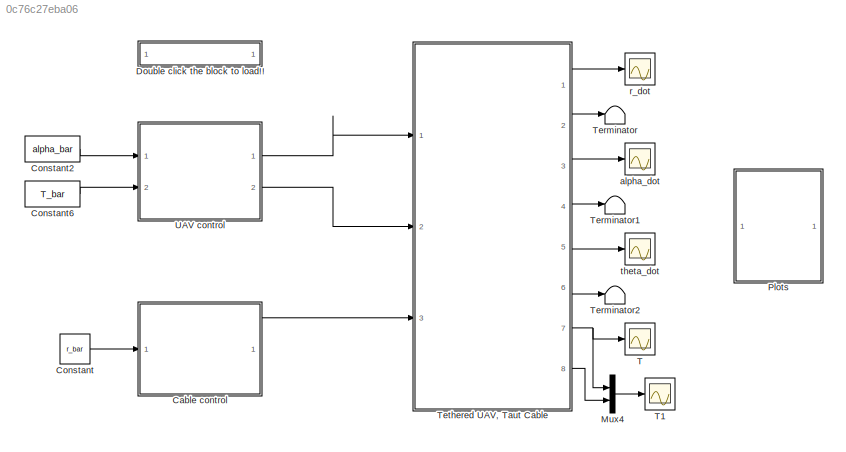
MODEL slx_0c76c27eba06
KIND model
CONFIG AbsTol = auto
CONFIG EnableMultiTasking = off
CONFIG FixedStep = 1/500
CONFIG MaxStep = auto
CONFIG MinStep = auto
CONFIG RelTol = 1e-3
CONFIG SampleTimeConstraint = Unconstrained
CONFIG Solver = ode4
CONFIG SolverName = ode4
CONFIG StartTime = 0.0
CONFIG StopTime = 4
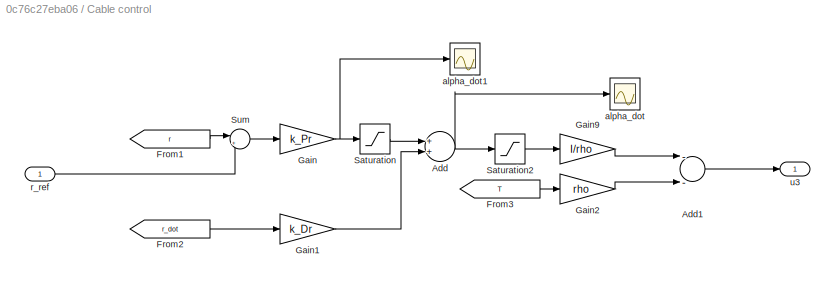
BLOCK [SubSystem] Cable control
  Ports = [1, 1]
  RequestExecContextInheritance = off
BLOCK [Sum] Cable control/Add
  InputSameDT = off
  OutDataTypeStr = Inherit: Inherit via internal rule
  Ports = [2, 1]
  SaturateOnIntegerOverflow = off
BLOCK [Sum] Cable control/Add1
  InputSameDT = off
  Inputs = --
  OutDataTypeStr = Inherit: Inherit via internal rule
  Ports = [2, 1]
  SaturateOnIntegerOverflow = off
BLOCK [From] Cable control/From1
  GotoTag = r
  TagVisibility = global
BLOCK [From] Cable control/From2
  GotoTag = r_dot
  TagVisibility = global
BLOCK [From] Cable control/From3
  GotoTag = T
  TagVisibility = global
BLOCK [Gain] Cable control/Gain
  Gain = k_Pr
  OutDataTypeStr = Inherit: Inherit via internal rule
  ParamDataTypeStr = Inherit: Inherit via internal rule
  SaturateOnIntegerOverflow = off
BLOCK [Gain] Cable control/Gain1
  Gain = k_Dr
  OutDataTypeStr = Inherit: Inherit via internal rule
  ParamDataTypeStr = Inherit: Inherit via internal rule
  SaturateOnIntegerOverflow = off
BLOCK [Gain] Cable control/Gain2
  Gain = rho
  OutDataTypeStr = Inherit: Inherit via internal rule
  ParamDataTypeStr = Inherit: Inherit via internal rule
  SaturateOnIntegerOverflow = off
BLOCK [Gain] Cable control/Gain9
  Gain = I/rho
  OutDataTypeStr = Inherit: Inherit via internal rule
  ParamDataTypeStr = Inherit: Inherit via internal rule
  SaturateOnIntegerOverflow = off
BLOCK [Saturate] Cable control/Saturation
  InputPortMap = u0
  LowerLimit = -15
  Ports = [1, 1]
  UpperLimit = 15
BLOCK [Saturate] Cable control/Saturation2
  InputPortMap = u0
  LowerLimit = -30
  Ports = [1, 1]
  UpperLimit = 30
BLOCK [Sum] Cable control/Sum
  IconShape = round
  InputSameDT = off
  Inputs = |+-
  OutDataTypeStr = Inherit: Inherit via internal rule
  Ports = [2, 1]
  SaturateOnIntegerOverflow = off
BLOCK [Scope] Cable control/alpha_dot
  Floating = off
  NumInputPorts = 1
  Ports = [1]
  ScopeSpecificationString = Simulink.scopes.TimeScopeBlockCfg('CurrentConfiguration', extmgr.ConfigurationSet(extmgr.Configuration('Core','General UI',true),extmgr.Configuration('Core','Source UI',true),extmgr.Configuration('Sources','WiredSimulink',true,'DataLoggingVariableName','ScopeData8'),extmgr.Configuration('Visuals','Time Domain',true,'SerializedDisplays',{struct('MinYLimReal','-17.15969','MaxYLimReal','4.43722','YLa...<+1366ch>
BLOCK [Scope] Cable control/alpha_dot1
  Floating = off
  NumInputPorts = 1
  Ports = [1]
  ScopeSpecificationString = Simulink.scopes.TimeScopeBlockCfg('CurrentConfiguration', extmgr.ConfigurationSet(extmgr.Configuration('Core','General UI',true),extmgr.Configuration('Core','Source UI',true),extmgr.Configuration('Sources','WiredSimulink',true,'DataLoggingVariableName','ScopeData9'),extmgr.Configuration('Visuals','Time Domain',true,'SerializedDisplays',{struct('MinYLimReal','-16.875','MaxYLimReal','1.875','YLabelR...<+1355ch>
BLOCK [Inport] Cable control/r_ref
  IconDisplay = Port number
BLOCK [Outport] Cable control/u3
  IconDisplay = Port number
BLOCK [Constant] Constant
  Value = r_bar
BLOCK [Constant] Constant2
  Value = alpha_bar
BLOCK [Constant] Constant6
  Value = T_bar
BLOCK [SubSystem] Double click the block to load!!
  OpenFcn = UAV_Taut_Cable_parameters
  Ports = []
  RequestExecContextInheritance = off
BLOCK [Mux] Mux4
  DisplayOption = bar
  Inputs = 2
  Ports = [2, 1]
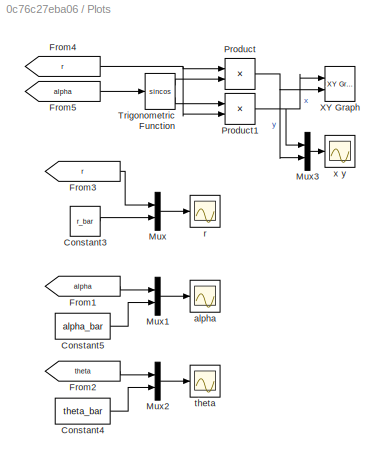
BLOCK [SubSystem] Plots
  Ports = []
  RequestExecContextInheritance = off
BLOCK [Constant] Plots/Constant3
  Value = r_bar
BLOCK [Constant] Plots/Constant4
  Value = theta_bar
BLOCK [Constant] Plots/Constant5
  Value = alpha_bar
BLOCK [From] Plots/From1
  GotoTag = alpha
  TagVisibility = global
BLOCK [From] Plots/From2
  GotoTag = theta
  TagVisibility = global
BLOCK [From] Plots/From3
  GotoTag = r
  TagVisibility = global
BLOCK [From] Plots/From4
  GotoTag = r
  TagVisibility = global
BLOCK [From] Plots/From5
  GotoTag = alpha
  TagVisibility = global
BLOCK [Mux] Plots/Mux
  DisplayOption = bar
  Inputs = 2
  Ports = [2, 1]
BLOCK [Mux] Plots/Mux1
  DisplayOption = bar
  Inputs = 2
  Ports = [2, 1]
BLOCK [Mux] Plots/Mux2
  DisplayOption = bar
  Inputs = 2
  Ports = [2, 1]
BLOCK [Mux] Plots/Mux3
  DisplayOption = bar
  Inputs = 2
  Ports = [2, 1]
BLOCK [Product] Plots/Product
  InputSameDT = off
  OutDataTypeStr = Inherit: Inherit via internal rule
  Ports = [2, 1]
  RndMeth = Floor
  SaturateOnIntegerOverflow = off
BLOCK [Product] Plots/Product1
  InputSameDT = off
  OutDataTypeStr = Inherit: Inherit via internal rule
  Ports = [2, 1]
  RndMeth = Floor
  SaturateOnIntegerOverflow = off
BLOCK [Trigonometry] Plots/Trigonometric Function
  Operator = sincos
  Ports = [1, 2]
BLOCK [Reference] Plots/XY Graph  REF=simulink/Sinks/XY Graph
  Ports = [2]
  SourceBlock = simulink/Sinks/XY Graph
  SourceProductBaseCode = SL
  SourceProductName = Simulink
  SourceType = XY scope.
BLOCK [Scope] Plots/alpha
  Floating = off
  NumInputPorts = 1
  Ports = [1]
  ScopeSpecificationString = Simulink.scopes.TimeScopeBlockCfg('CurrentConfiguration', extmgr.ConfigurationSet(extmgr.Configuration('Core','General UI',true),extmgr.Configuration('Core','Source UI',true),extmgr.Configuration('Sources','WiredSimulink',true,'DataLoggingVariableName','ScopeData1'),extmgr.Configuration('Visuals','Time Domain',true,'SerializedDisplays',{struct('MinYLimReal','2.78667','MaxYLimReal','2.90891','YLabe...<+1494ch>
BLOCK [Scope] Plots/r
  Floating = off
  NumInputPorts = 1
  Ports = [1]
  ScopeSpecificationString = Simulink.scopes.TimeScopeBlockCfg('CurrentConfiguration', extmgr.ConfigurationSet(extmgr.Configuration('Core','General UI',true),extmgr.Configuration('Core','Source UI',true),extmgr.Configuration('Sources','WiredSimulink',true),extmgr.Configuration('Visuals','Time Domain',true,'SerializedDisplays',{struct('MinYLimReal','0.4375','MaxYLimReal','1.0625','YLabelReal','','MinYLimMag','0.4375','MaxYLimM...<+1376ch>
BLOCK [Scope] Plots/theta
  Floating = off
  NumInputPorts = 1
  Ports = [1]
  ScopeSpecificationString = Simulink.scopes.TimeScopeBlockCfg('CurrentConfiguration', extmgr.ConfigurationSet(extmgr.Configuration('Core','General UI',true),extmgr.Configuration('Core','Source UI',true),extmgr.Configuration('Sources','WiredSimulink',true,'DataLoggingVariableName','ScopeData2'),extmgr.Configuration('Visuals','Time Domain',true,'SerializedDisplays',{struct('MinYLimReal','-1.07418','MaxYLimReal','1.75468','YLab...<+1425ch>
BLOCK [Scope] Plots/x y
  Floating = off
  NumInputPorts = 1
  Ports = [1]
  ScopeSpecificationString = Simulink.scopes.TimeScopeBlockCfg('CurrentConfiguration', extmgr.ConfigurationSet(extmgr.Configuration('Core','General UI',true),extmgr.Configuration('Core','Source UI',true),extmgr.Configuration('Sources','WiredSimulink',true,'DataLoggingVariableName','ScopeData7'),extmgr.Configuration('Visuals','Time Domain',true,'SerializedDisplays',{struct('MinYLimReal','-0.60867','MaxYLimReal','0.62279','YLab...<+1418ch>
BLOCK [Scope] T
  Floating = off
  NumInputPorts = 1
  Ports = [1]
  ScopeSpecificationString = Simulink.scopes.TimeScopeBlockCfg('CurrentConfiguration', extmgr.ConfigurationSet(extmgr.Configuration('Core','General UI',true),extmgr.Configuration('Core','Source UI',true),extmgr.Configuration('Sources','WiredSimulink',true,'DataLoggingVariableName','ScopeData3'),extmgr.Configuration('Visuals','Time Domain',true,'SerializedDisplays',{struct('MinYLimReal','-25.17621','MaxYLimReal','60.71597','YL...<+1445ch>
BLOCK [Scope] T1
  Floating = off
  NumInputPorts = 1
  Ports = [1]
  ScopeSpecificationString = Simulink.scopes.TimeScopeBlockCfg('CurrentConfiguration', extmgr.ConfigurationSet(extmgr.Configuration('Core','General UI',true),extmgr.Configuration('Core','Source UI',true),extmgr.Configuration('Sources','WiredSimulink',true,'DataLoggingVariableName','ScopeData1'),extmgr.Configuration('Visuals','Time Domain',true,'SerializedDisplays',{struct('MinYLimReal','-25.17621','MaxYLimReal','60.71597','YL...<+1536ch>
BLOCK [Terminator] Terminator
BLOCK [Terminator] Terminator1
BLOCK [Terminator] Terminator2
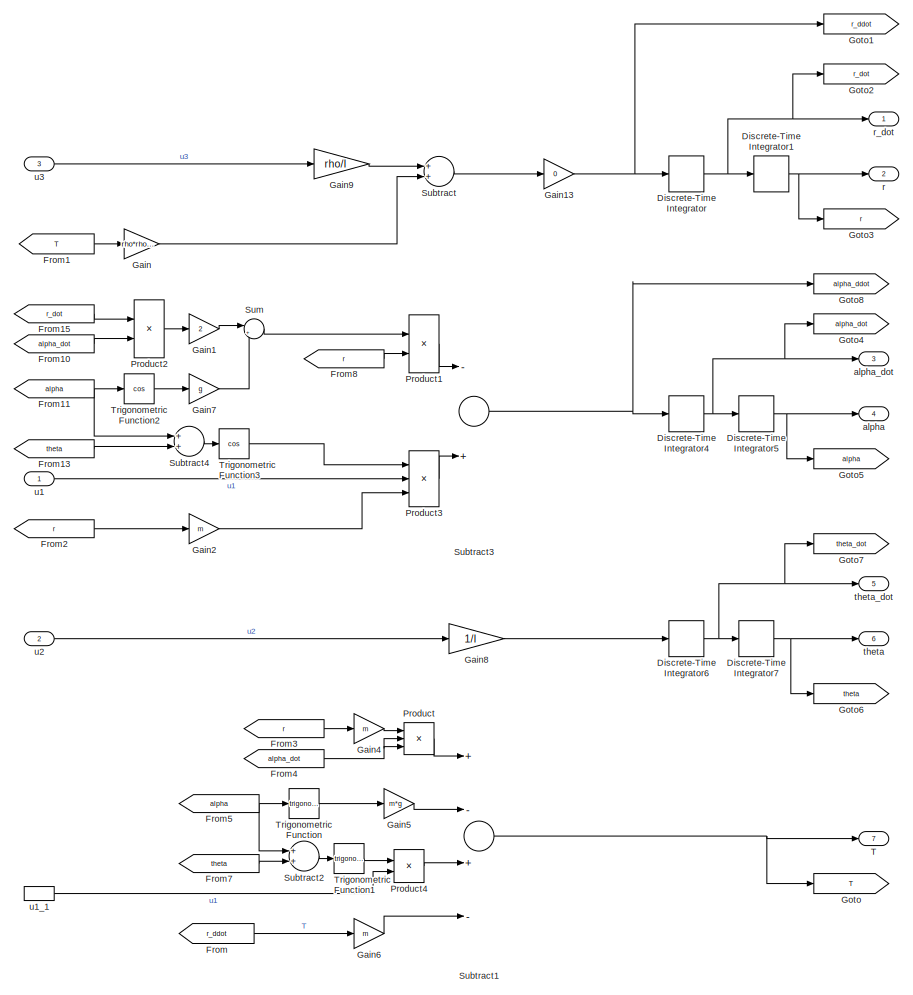
[diagram: Tethered UAV, Taut Cable - part 1/2, full width, top band]
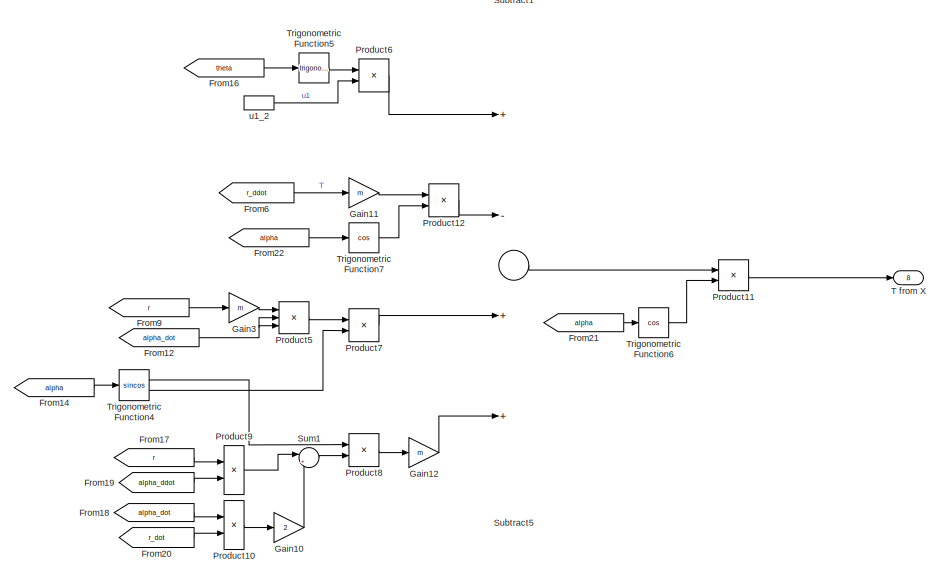
[diagram: Tethered UAV, Taut Cable - part 2/2, full width, bottom band]
BLOCK [SubSystem] Tethered UAV, Taut Cable
  Ports = [3, 8]
  RequestExecContextInheritance = off
BLOCK [DiscreteIntegrator] Tethered UAV, Taut Cable/Discrete-Time Integrator
  ICPrevOutput = DiscIntNeverNeededParam
  ICPrevScaledInput = DiscIntNeverNeededParam
  InitialConditionSetting = Auto
  Ports = [1, 1]
  SampleTime = -1
BLOCK [DiscreteIntegrator] Tethered UAV, Taut Cable/Discrete-Time Integrator1
  ICPrevOutput = DiscIntNeverNeededParam
  ICPrevScaledInput = DiscIntNeverNeededParam
  InitialCondition = r_0
  InitialConditionSetting = Auto
  Ports = [1, 1]
  SampleTime = -1
BLOCK [DiscreteIntegrator] Tethered UAV, Taut Cable/Discrete-Time Integrator4
  ICPrevOutput = DiscIntNeverNeededParam
  ICPrevScaledInput = DiscIntNeverNeededParam
  InitialConditionSetting = Auto
  Ports = [1, 1]
  SampleTime = -1
BLOCK [DiscreteIntegrator] Tethered UAV, Taut Cable/Discrete-Time Integrator5
  ICPrevOutput = DiscIntNeverNeededParam
  ICPrevScaledInput = DiscIntNeverNeededParam
  InitialCondition = alpha_0
  InitialConditionSetting = Auto
  Ports = [1, 1]
  SampleTime = -1
BLOCK [DiscreteIntegrator] Tethered UAV, Taut Cable/Discrete-Time Integrator6
  ICPrevOutput = DiscIntNeverNeededParam
  ICPrevScaledInput = DiscIntNeverNeededParam
  InitialConditionSetting = Auto
  Ports = [1, 1]
  SampleTime = -1
BLOCK [DiscreteIntegrator] Tethered UAV, Taut Cable/Discrete-Time Integrator7
  ICPrevOutput = DiscIntNeverNeededParam
  ICPrevScaledInput = DiscIntNeverNeededParam
  InitialCondition = theta_0
  InitialConditionSetting = Auto
  Ports = [1, 1]
  SampleTime = -1
BLOCK [From] Tethered UAV, Taut Cable/From
  GotoTag = r_ddot
  TagVisibility = global
BLOCK [From] Tethered UAV, Taut Cable/From1
  GotoTag = T
  TagVisibility = global
BLOCK [From] Tethered UAV, Taut Cable/From10
  GotoTag = alpha_dot
  TagVisibility = global
BLOCK [From] Tethered UAV, Taut Cable/From11
  GotoTag = alpha
  TagVisibility = global
BLOCK [From] Tethered UAV, Taut Cable/From12
  GotoTag = alpha_dot
  TagVisibility = global
BLOCK [From] Tethered UAV, Taut Cable/From13
  GotoTag = theta
  TagVisibility = global
BLOCK [From] Tethered UAV, Taut Cable/From14
  GotoTag = alpha
  TagVisibility = global
BLOCK [From] Tethered UAV, Taut Cable/From15
  GotoTag = r_dot
  TagVisibility = global
BLOCK [From] Tethered UAV, Taut Cable/From16
  GotoTag = theta
  TagVisibility = global
BLOCK [From] Tethered UAV, Taut Cable/From17
  GotoTag = r
  TagVisibility = global
BLOCK [From] Tethered UAV, Taut Cable/From18
  GotoTag = alpha_dot
  TagVisibility = global
BLOCK [From] Tethered UAV, Taut Cable/From19
  GotoTag = alpha_ddot
  TagVisibility = global
BLOCK [From] Tethered UAV, Taut Cable/From2
  GotoTag = r
  TagVisibility = global
BLOCK [From] Tethered UAV, Taut Cable/From20
  GotoTag = r_dot
  TagVisibility = global
BLOCK [From] Tethered UAV, Taut Cable/From21
  GotoTag = alpha
  TagVisibility = global
BLOCK [From] Tethered UAV, Taut Cable/From22
  GotoTag = alpha
  TagVisibility = global
BLOCK [From] Tethered UAV, Taut Cable/From3
  GotoTag = r
  TagVisibility = global
BLOCK [From] Tethered UAV, Taut Cable/From4
  GotoTag = alpha_dot
  TagVisibility = global
BLOCK [From] Tethered UAV, Taut Cable/From5
  GotoTag = alpha
  TagVisibility = global
BLOCK [From] Tethered UAV, Taut Cable/From6
  GotoTag = r_ddot
  TagVisibility = global
BLOCK [From] Tethered UAV, Taut Cable/From7
  GotoTag = theta
  TagVisibility = global
BLOCK [From] Tethered UAV, Taut Cable/From8
  GotoTag = r
  TagVisibility = global
BLOCK [From] Tethered UAV, Taut Cable/From9
  GotoTag = r
  TagVisibility = global
BLOCK [Gain] Tethered UAV, Taut Cable/Gain
  Gain = rho*rho/I
  OutDataTypeStr = Inherit: Inherit via internal rule
  ParamDataTypeStr = Inherit: Inherit via internal rule
  SaturateOnIntegerOverflow = off
BLOCK [Gain] Tethered UAV, Taut Cable/Gain1
  Gain = 2
  OutDataTypeStr = Inherit: Inherit via internal rule
  ParamDataTypeStr = Inherit: Inherit via internal rule
  SaturateOnIntegerOverflow = off
BLOCK [Gain] Tethered UAV, Taut Cable/Gain10
  Gain = 2
  OutDataTypeStr = Inherit: Inherit via internal rule
  ParamDataTypeStr = Inherit: Inherit via internal rule
  SaturateOnIntegerOverflow = off
BLOCK [Gain] Tethered UAV, Taut Cable/Gain11
  Gain = m
  OutDataTypeStr = Inherit: Inherit via internal rule
  ParamDataTypeStr = Inherit: Inherit via internal rule
  SaturateOnIntegerOverflow = off
BLOCK [Gain] Tethered UAV, Taut Cable/Gain12
  Gain = m
  OutDataTypeStr = Inherit: Inherit via internal rule
  ParamDataTypeStr = Inherit: Inherit via internal rule
  SaturateOnIntegerOverflow = off
BLOCK [Gain] Tethered UAV, Taut Cable/Gain13
  Gain = 0
  OutDataTypeStr = Inherit: Inherit via internal rule
  ParamDataTypeStr = Inherit: Inherit via internal rule
  SaturateOnIntegerOverflow = off
BLOCK [Gain] Tethered UAV, Taut Cable/Gain2
  Gain = m
  OutDataTypeStr = Inherit: Inherit via internal rule
  ParamDataTypeStr = Inherit: Inherit via internal rule
  SaturateOnIntegerOverflow = off
BLOCK [Gain] Tethered UAV, Taut Cable/Gain3
  Gain = m
  OutDataTypeStr = Inherit: Inherit via internal rule
  ParamDataTypeStr = Inherit: Inherit via internal rule
  SaturateOnIntegerOverflow = off
BLOCK [Gain] Tethered UAV, Taut Cable/Gain4
  Gain = m
  OutDataTypeStr = Inherit: Inherit via internal rule
  ParamDataTypeStr = Inherit: Inherit via internal rule
  SaturateOnIntegerOverflow = off
BLOCK [Gain] Tethered UAV, Taut Cable/Gain5
  Gain = m*g
  OutDataTypeStr = Inherit: Inherit via internal rule
  ParamDataTypeStr = Inherit: Inherit via internal rule
  SaturateOnIntegerOverflow = off
BLOCK [Gain] Tethered UAV, Taut Cable/Gain6
  Gain = m
  OutDataTypeStr = Inherit: Inherit via internal rule
  ParamDataTypeStr = Inherit: Inherit via internal rule
  SaturateOnIntegerOverflow = off
BLOCK [Gain] Tethered UAV, Taut Cable/Gain7
  Gain = g
  OutDataTypeStr = Inherit: Inherit via internal rule
  ParamDataTypeStr = Inherit: Inherit via internal rule
  SaturateOnIntegerOverflow = off
BLOCK [Gain] Tethered UAV, Taut Cable/Gain8
  Gain = 1/I
  OutDataTypeStr = Inherit: Inherit via internal rule
  ParamDataTypeStr = Inherit: Inherit via internal rule
  SaturateOnIntegerOverflow = off
BLOCK [Gain] Tethered UAV, Taut Cable/Gain9
  Gain = rho/I
  OutDataTypeStr = Inherit: Inherit via internal rule
  ParamDataTypeStr = Inherit: Inherit via internal rule
  SaturateOnIntegerOverflow = off
BLOCK [Goto] Tethered UAV, Taut Cable/Goto
  GotoTag = T
  TagVisibility = global
BLOCK [Goto] Tethered UAV, Taut Cable/Goto1
  GotoTag = r_ddot
  TagVisibility = global
BLOCK [Goto] Tethered UAV, Taut Cable/Goto2
  GotoTag = r_dot
  TagVisibility = global
BLOCK [Goto] Tethered UAV, Taut Cable/Goto3
  GotoTag = r
  TagVisibility = global
BLOCK [Goto] Tethered UAV, Taut Cable/Goto4
  GotoTag = alpha_dot
  TagVisibility = global
BLOCK [Goto] Tethered UAV, Taut Cable/Goto5
  GotoTag = alpha
  TagVisibility = global
BLOCK [Goto] Tethered UAV, Taut Cable/Goto6
  GotoTag = theta
  TagVisibility = global
BLOCK [Goto] Tethered UAV, Taut Cable/Goto7
  GotoTag = theta_dot
  TagVisibility = global
BLOCK [Goto] Tethered UAV, Taut Cable/Goto8
  GotoTag = alpha_ddot
  TagVisibility = global
BLOCK [Product] Tethered UAV, Taut Cable/Product
  InputSameDT = off
  Inputs = 3
  OutDataTypeStr = Inherit: Inherit via internal rule
  Ports = [3, 1]
  RndMeth = Floor
  SaturateOnIntegerOverflow = off
BLOCK [Product] Tethered UAV, Taut Cable/Product1
  InputSameDT = off
  Inputs = */
  OutDataTypeStr = Inherit: Inherit via internal rule
  Ports = [2, 1]
  RndMeth = Floor
  SaturateOnIntegerOverflow = off
BLOCK [Product] Tethered UAV, Taut Cable/Product10
  InputSameDT = off
  OutDataTypeStr = Inherit: Inherit via internal rule
  Ports = [2, 1]
  RndMeth = Floor
  SaturateOnIntegerOverflow = off
BLOCK [Product] Tethered UAV, Taut Cable/Product11
  InputSameDT = off
  Inputs = */
  OutDataTypeStr = Inherit: Inherit via internal rule
  Ports = [2, 1]
  RndMeth = Floor
  SaturateOnIntegerOverflow = off
BLOCK [Product] Tethered UAV, Taut Cable/Product12
  InputSameDT = off
  OutDataTypeStr = Inherit: Inherit via internal rule
  Ports = [2, 1]
  RndMeth = Floor
  SaturateOnIntegerOverflow = off
BLOCK [Product] Tethered UAV, Taut Cable/Product2
  InputSameDT = off
  Inputs = **
  OutDataTypeStr = Inherit: Inherit via internal rule
  Ports = [2, 1]
  RndMeth = Floor
  SaturateOnIntegerOverflow = off
BLOCK [Product] Tethered UAV, Taut Cable/Product3
  InputSameDT = off
  Inputs = **/
  OutDataTypeStr = Inherit: Inherit via internal rule
  Ports = [3, 1]
  RndMeth = Floor
  SaturateOnIntegerOverflow = off
BLOCK [Product] Tethered UAV, Taut Cable/Product4
  InputSameDT = off
  OutDataTypeStr = Inherit: Inherit via internal rule
  Ports = [2, 1]
  RndMeth = Floor
  SaturateOnIntegerOverflow = off
BLOCK [Product] Tethered UAV, Taut Cable/Product5
  InputSameDT = off
  Inputs = 3
  OutDataTypeStr = Inherit: Inherit via internal rule
  Ports = [3, 1]
  RndMeth = Floor
  SaturateOnIntegerOverflow = off
BLOCK [Product] Tethered UAV, Taut Cable/Product6
  InputSameDT = off
  OutDataTypeStr = Inherit: Inherit via internal rule
  Ports = [2, 1]
  RndMeth = Floor
  SaturateOnIntegerOverflow = off
BLOCK [Product] Tethered UAV, Taut Cable/Product7
  InputSameDT = off
  OutDataTypeStr = Inherit: Inherit via internal rule
  Ports = [2, 1]
  RndMeth = Floor
  SaturateOnIntegerOverflow = off
BLOCK [Product] Tethered UAV, Taut Cable/Product8
  InputSameDT = off
  OutDataTypeStr = Inherit: Inherit via internal rule
  Ports = [2, 1]
  RndMeth = Floor
  SaturateOnIntegerOverflow = off
BLOCK [Product] Tethered UAV, Taut Cable/Product9
  InputSameDT = off
  OutDataTypeStr = Inherit: Inherit via internal rule
  Ports = [2, 1]
  RndMeth = Floor
  SaturateOnIntegerOverflow = off
BLOCK [Sum] Tethered UAV, Taut Cable/Subtract
  InputSameDT = off
  OutDataTypeStr = Inherit: Inherit via internal rule
  Ports = [2, 1]
  SaturateOnIntegerOverflow = off
BLOCK [Sum] Tethered UAV, Taut Cable/Subtract1
  InputSameDT = off
  Inputs = +-+-
  OutDataTypeStr = Inherit: Inherit via internal rule
  Ports = [4, 1]
  SaturateOnIntegerOverflow = off
BLOCK [Sum] Tethered UAV, Taut Cable/Subtract2
  InputSameDT = off
  OutDataTypeStr = Inherit: Inherit via internal rule
  Ports = [2, 1]
  SaturateOnIntegerOverflow = off
BLOCK [Sum] Tethered UAV, Taut Cable/Subtract3
  InputSameDT = off
  Inputs = -+
  OutDataTypeStr = Inherit: Inherit via internal rule
  Ports = [2, 1]
  SaturateOnIntegerOverflow = off
BLOCK [Sum] Tethered UAV, Taut Cable/Subtract4
  InputSameDT = off
  OutDataTypeStr = Inherit: Inherit via internal rule
  Ports = [2, 1]
  SaturateOnIntegerOverflow = off
BLOCK [Sum] Tethered UAV, Taut Cable/Subtract5
  InputSameDT = off
  Inputs = +-++
  OutDataTypeStr = Inherit: Inherit via internal rule
  Ports = [4, 1]
  SaturateOnIntegerOverflow = off
BLOCK [Sum] Tethered UAV, Taut Cable/Sum
  IconShape = round
  InputSameDT = off
  Inputs = |++
  OutDataTypeStr = Inherit: Inherit via internal rule
  Ports = [2, 1]
  SaturateOnIntegerOverflow = off
BLOCK [Sum] Tethered UAV, Taut Cable/Sum1
  IconShape = round
  InputSameDT = off
  Inputs = |++
  OutDataTypeStr = Inherit: Inherit via internal rule
  Ports = [2, 1]
  SaturateOnIntegerOverflow = off
BLOCK [Outport] Tethered UAV, Taut Cable/T
  IconDisplay = Port number
  Port = 7
BLOCK [Outport] Tethered UAV, Taut Cable/T from X
  IconDisplay = Port number
  Port = 8
BLOCK [Trigonometry] Tethered UAV, Taut Cable/Trigonometric Function
  Ports = [1, 1]
BLOCK [Trigonometry] Tethered UAV, Taut Cable/Trigonometric Function1
  Ports = [1, 1]
BLOCK [Trigonometry] Tethered UAV, Taut Cable/Trigonometric Function2
  Operator = cos
  Ports = [1, 1]
BLOCK [Trigonometry] Tethered UAV, Taut Cable/Trigonometric Function3
  Operator = cos
  Ports = [1, 1]
BLOCK [Trigonometry] Tethered UAV, Taut Cable/Trigonometric Function4
  Operator = sincos
  Ports = [1, 2]
BLOCK [Trigonometry] Tethered UAV, Taut Cable/Trigonometric Function5
  Ports = [1, 1]
BLOCK [Trigonometry] Tethered UAV, Taut Cable/Trigonometric Function6
  Operator = cos
  Ports = [1, 1]
BLOCK [Trigonometry] Tethered UAV, Taut Cable/Trigonometric Function7
  Operator = cos
  Ports = [1, 1]
BLOCK [Outport] Tethered UAV, Taut Cable/alpha
  IconDisplay = Port number
  Port = 4
BLOCK [Outport] Tethered UAV, Taut Cable/alpha_dot
  IconDisplay = Port number
  Port = 3
BLOCK [Outport] Tethered UAV, Taut Cable/r
  IconDisplay = Port number
  Port = 2
BLOCK [Outport] Tethered UAV, Taut Cable/r_dot
  IconDisplay = Port number
BLOCK [Outport] Tethered UAV, Taut Cable/theta
  IconDisplay = Port number
  Port = 6
BLOCK [Outport] Tethered UAV, Taut Cable/theta_dot
  IconDisplay = Port number
  Port = 5
BLOCK [Inport] Tethered UAV, Taut Cable/u1
  IconDisplay = Port number
BLOCK [InportShadow] Tethered UAV, Taut Cable/u1_1
  IconDisplay = Port number
BLOCK [InportShadow] Tethered UAV, Taut Cable/u1_2
  IconDisplay = Port number
BLOCK [Inport] Tethered UAV, Taut Cable/u2
  IconDisplay = Port number
  Port = 2
BLOCK [Inport] Tethered UAV, Taut Cable/u3
  IconDisplay = Port number
  Port = 3
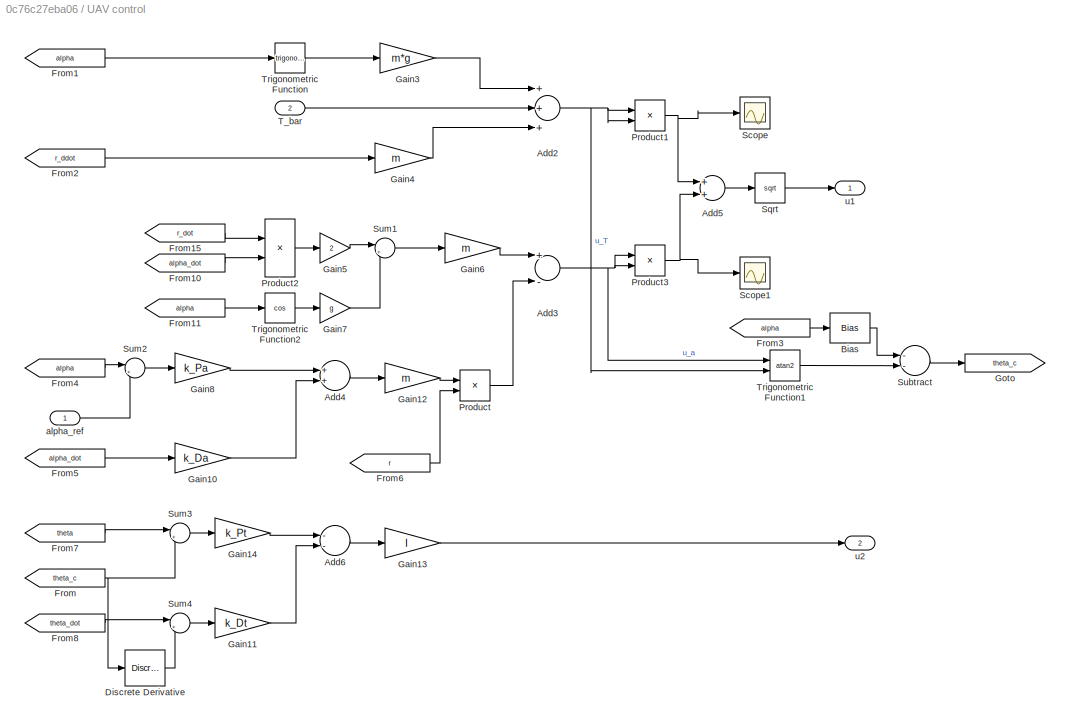
BLOCK [SubSystem] UAV control
  Ports = [2, 2]
  RequestExecContextInheritance = off
BLOCK [Sum] UAV control/Add2
  InputSameDT = off
  Inputs = +++
  OutDataTypeStr = Inherit: Inherit via internal rule
  Ports = [3, 1]
  SaturateOnIntegerOverflow = off
BLOCK [Sum] UAV control/Add3
  InputSameDT = off
  Inputs = +-
  OutDataTypeStr = Inherit: Inherit via internal rule
  Ports = [2, 1]
  SaturateOnIntegerOverflow = off
BLOCK [Sum] UAV control/Add4
  InputSameDT = off
  OutDataTypeStr = Inherit: Inherit via internal rule
  Ports = [2, 1]
  SaturateOnIntegerOverflow = off
BLOCK [Sum] UAV control/Add5
  InputSameDT = off
  Inputs = 2
  OutDataTypeStr = Inherit: Inherit via internal rule
  Ports = [2, 1]
  SaturateOnIntegerOverflow = off
BLOCK [Sum] UAV control/Add6
  InputSameDT = off
  Inputs = --
  OutDataTypeStr = Inherit: Inherit via internal rule
  Ports = [2, 1]
  SaturateOnIntegerOverflow = off
BLOCK [Bias] UAV control/Bias
  Bias = -pi/2
  SaturateOnIntegerOverflow = off
BLOCK [Reference] UAV control/Discrete Derivative  REF=simulink/Discrete/Discrete Derivative
  Ports = [1, 1]
  SourceBlock = simulink/Discrete/Discrete Derivative
  SourceProductBaseCode = SL
  SourceProductName = Simulink
  SourceType = Discrete Derivative
BLOCK [From] UAV control/From
  GotoTag = theta_c
BLOCK [From] UAV control/From1
  GotoTag = alpha
  TagVisibility = global
BLOCK [From] UAV control/From10
  GotoTag = alpha_dot
  TagVisibility = global
BLOCK [From] UAV control/From11
  GotoTag = alpha
  TagVisibility = global
BLOCK [From] UAV control/From15
  GotoTag = r_dot
  TagVisibility = global
BLOCK [From] UAV control/From2
  GotoTag = r_ddot
  TagVisibility = global
BLOCK [From] UAV control/From3
  GotoTag = alpha
  TagVisibility = global
BLOCK [From] UAV control/From4
  GotoTag = alpha
  TagVisibility = global
BLOCK [From] UAV control/From5
  GotoTag = alpha_dot
  TagVisibility = global
BLOCK [From] UAV control/From6
  GotoTag = r
  TagVisibility = global
BLOCK [From] UAV control/From7
  GotoTag = theta
  TagVisibility = global
BLOCK [From] UAV control/From8
  GotoTag = theta_dot
  TagVisibility = global
BLOCK [Gain] UAV control/Gain10
  Gain = k_Da
  OutDataTypeStr = Inherit: Inherit via internal rule
  ParamDataTypeStr = Inherit: Inherit via internal rule
  SaturateOnIntegerOverflow = off
BLOCK [Gain] UAV control/Gain11
  Gain = k_Dt
  OutDataTypeStr = Inherit: Inherit via internal rule
  ParamDataTypeStr = Inherit: Inherit via internal rule
  SaturateOnIntegerOverflow = off
BLOCK [Gain] UAV control/Gain12
  Gain = m
  OutDataTypeStr = Inherit: Inherit via internal rule
  ParamDataTypeStr = Inherit: Inherit via internal rule
  SaturateOnIntegerOverflow = off
BLOCK [Gain] UAV control/Gain13
  Gain = I
  OutDataTypeStr = Inherit: Inherit via internal rule
  ParamDataTypeStr = Inherit: Inherit via internal rule
  SaturateOnIntegerOverflow = off
BLOCK [Gain] UAV control/Gain14
  Gain = k_Pt
  OutDataTypeStr = Inherit: Inherit via internal rule
  ParamDataTypeStr = Inherit: Inherit via internal rule
  SaturateOnIntegerOverflow = off
BLOCK [Gain] UAV control/Gain3
  Gain = m*g
  OutDataTypeStr = Inherit: Inherit via internal rule
  ParamDataTypeStr = Inherit: Inherit via internal rule
  SaturateOnIntegerOverflow = off
BLOCK [Gain] UAV control/Gain4
  Gain = m
  OutDataTypeStr = Inherit: Inherit via internal rule
  ParamDataTypeStr = Inherit: Inherit via internal rule
  SaturateOnIntegerOverflow = off
BLOCK [Gain] UAV control/Gain5
  Gain = 2
  OutDataTypeStr = Inherit: Inherit via internal rule
  ParamDataTypeStr = Inherit: Inherit via internal rule
  SaturateOnIntegerOverflow = off
BLOCK [Gain] UAV control/Gain6
  Gain = m
  OutDataTypeStr = Inherit: Inherit via internal rule
  ParamDataTypeStr = Inherit: Inherit via internal rule
  SaturateOnIntegerOverflow = off
BLOCK [Gain] UAV control/Gain7
  Gain = g
  OutDataTypeStr = Inherit: Inherit via internal rule
  ParamDataTypeStr = Inherit: Inherit via internal rule
  SaturateOnIntegerOverflow = off
BLOCK [Gain] UAV control/Gain8
  Gain = k_Pa
  OutDataTypeStr = Inherit: Inherit via internal rule
  ParamDataTypeStr = Inherit: Inherit via internal rule
  SaturateOnIntegerOverflow = off
BLOCK [Goto] UAV control/Goto
  GotoTag = theta_c
BLOCK [Product] UAV control/Product
  InputSameDT = off
  OutDataTypeStr = Inherit: Inherit via internal rule
  Ports = [2, 1]
  RndMeth = Floor
  SaturateOnIntegerOverflow = off
BLOCK [Product] UAV control/Product1
  InputSameDT = off
  OutDataTypeStr = Inherit: Inherit via internal rule
  Ports = [2, 1]
  RndMeth = Floor
  SaturateOnIntegerOverflow = off
BLOCK [Product] UAV control/Product2
  InputSameDT = off
  Inputs = **
  OutDataTypeStr = Inherit: Inherit via internal rule
  Ports = [2, 1]
  RndMeth = Floor
  SaturateOnIntegerOverflow = off
BLOCK [Product] UAV control/Product3
  InputSameDT = off
  OutDataTypeStr = Inherit: Inherit via internal rule
  Ports = [2, 1]
  RndMeth = Floor
  SaturateOnIntegerOverflow = off
BLOCK [Scope] UAV control/Scope
  Floating = off
  NumInputPorts = 1
  Ports = [1]
  ScopeSpecificationString = Simulink.scopes.TimeScopeBlockCfg('CurrentConfiguration', extmgr.ConfigurationSet(extmgr.Configuration('Core','General UI',true),extmgr.Configuration('Core','Source UI',true),extmgr.Configuration('Sources','WiredSimulink',true,'DataLoggingVariableName','ScopeData1'),extmgr.Configuration('Visuals','Time Domain',true),extmgr.Configuration('Tools','Plot Navigation',true),extmgr.Configuration('Tools',...<+40ch>
BLOCK [Scope] UAV control/Scope1
  Floating = off
  NumInputPorts = 1
  Ports = [1]
  ScopeSpecificationString = Simulink.scopes.TimeScopeBlockCfg('CurrentConfiguration', extmgr.ConfigurationSet(extmgr.Configuration('Core','General UI',true),extmgr.Configuration('Core','Source UI',true),extmgr.Configuration('Sources','WiredSimulink',true,'DataLoggingVariableName','ScopeData2'),extmgr.Configuration('Visuals','Time Domain',true),extmgr.Configuration('Tools','Plot Navigation',true),extmgr.Configuration('Tools',...<+40ch>
BLOCK [Sqrt] UAV control/Sqrt
BLOCK [Sum] UAV control/Subtract
  InputSameDT = off
  Inputs = --
  OutDataTypeStr = Inherit: Inherit via internal rule
  Ports = [2, 1]
  SaturateOnIntegerOverflow = off
BLOCK [Sum] UAV control/Sum1
  IconShape = round
  InputSameDT = off
  Inputs = |++
  OutDataTypeStr = Inherit: Inherit via internal rule
  Ports = [2, 1]
  SaturateOnIntegerOverflow = off
BLOCK [Sum] UAV control/Sum2
  IconShape = round
  InputSameDT = off
  Inputs = |+-
  OutDataTypeStr = Inherit: Inherit via internal rule
  Ports = [2, 1]
  SaturateOnIntegerOverflow = off
BLOCK [Sum] UAV control/Sum3
  IconShape = round
  InputSameDT = off
  Inputs = |+-
  OutDataTypeStr = Inherit: Inherit via internal rule
  Ports = [2, 1]
  SaturateOnIntegerOverflow = off
BLOCK [Sum] UAV control/Sum4
  IconShape = round
  InputSameDT = off
  Inputs = |+-
  OutDataTypeStr = Inherit: Inherit via internal rule
  Ports = [2, 1]
  SaturateOnIntegerOverflow = off
BLOCK [Inport] UAV control/T_bar
  IconDisplay = Port number
  Port = 2
BLOCK [Trigonometry] UAV control/Trigonometric Function
  Ports = [1, 1]
BLOCK [Trigonometry] UAV control/Trigonometric Function1
  Operator = atan2
  Ports = [2, 1]
BLOCK [Trigonometry] UAV control/Trigonometric Function2
  Operator = cos
  Ports = [1, 1]
BLOCK [Inport] UAV control/alpha_ref
  IconDisplay = Port number
BLOCK [Outport] UAV control/u1
  IconDisplay = Port number
BLOCK [Outport] UAV control/u2
  IconDisplay = Port number
  Port = 2
BLOCK [Scope] alpha_dot
  Floating = off
  NumInputPorts = 1
  Ports = [1]
  ScopeSpecificationString = Simulink.scopes.TimeScopeBlockCfg('CurrentConfiguration', extmgr.ConfigurationSet(extmgr.Configuration('Core','General UI',true),extmgr.Configuration('Core','Source UI',true),extmgr.Configuration('Sources','WiredSimulink',true,'DataLoggingVariableName','ScopeData5'),extmgr.Configuration('Visuals','Time Domain',true),extmgr.Configuration('Tools','Plot Navigation',true),extmgr.Configuration('Tools',...<+40ch>
BLOCK [Scope] r_dot
  Floating = off
  NumInputPorts = 1
  Ports = [1]
  ScopeSpecificationString = Simulink.scopes.TimeScopeBlockCfg('CurrentConfiguration', extmgr.ConfigurationSet(extmgr.Configuration('Core','General UI',true),extmgr.Configuration('Core','Source UI',true),extmgr.Configuration('Sources','WiredSimulink',true,'DataLoggingVariableName','ScopeData6'),extmgr.Configuration('Visuals','Time Domain',true),extmgr.Configuration('Tools','Plot Navigation',true),extmgr.Configuration('Tools',...<+40ch>
BLOCK [Scope] theta_dot
  Floating = off
  NumInputPorts = 1
  Ports = [1]
  ScopeSpecificationString = Simulink.scopes.TimeScopeBlockCfg('CurrentConfiguration', extmgr.ConfigurationSet(extmgr.Configuration('Core','General UI',true),extmgr.Configuration('Core','Source UI',true),extmgr.Configuration('Sources','WiredSimulink',true,'DataLoggingVariableName','ScopeData4'),extmgr.Configuration('Visuals','Time Domain',true),extmgr.Configuration('Tools','Plot Navigation',true),extmgr.Configuration('Tools',...<+40ch>
LINE Cable control/Add1:1 -> Cable control/u3:1
NET Cable control/Add:1 -> Cable control/Saturation2:1, Cable control/alpha_dot:1
LINE Cable control/From1:1 -> Cable control/Sum:1
LINE Cable control/From2:1 -> Cable control/Gain1:1
LINE Cable control/From3:1 -> Cable control/Gain2:1
LINE Cable control/Gain1:1 -> Cable control/Add:2
LINE Cable control/Gain2:1 -> Cable control/Add1:2
LINE Cable control/Gain9:1 -> Cable control/Add1:1
NET Cable control/Gain:1 -> Cable control/Saturation:1, Cable control/alpha_dot1:1
LINE Cable control/Saturation2:1 -> Cable control/Gain9:1
LINE Cable control/Saturation:1 -> Cable control/Add:1
LINE Cable control/Sum:1 -> Cable control/Gain:1
LINE Cable control/r_ref:1 -> Cable control/Sum:2
LINE Cable control:1 -> Tethered UAV, Taut Cable:3
LINE Constant2:1 -> UAV control:1
LINE Constant6:1 -> UAV control:2
LINE Constant:1 -> Cable control:1
LINE Mux4:1 -> T1:1
LINE Plots/Constant3:1 -> Plots/Mux:2
LINE Plots/Constant4:1 -> Plots/Mux2:2
LINE Plots/Constant5:1 -> Plots/Mux1:2
LINE Plots/From1:1 -> Plots/Mux1:1
LINE Plots/From2:1 -> Plots/Mux2:1
LINE Plots/From3:1 -> Plots/Mux:1
NET Plots/From4:1 -> Plots/Product1:2, Plots/Product:1
LINE Plots/From5:1 -> Plots/Trigonometric Function:1
LINE Plots/Mux1:1 -> Plots/alpha:1
LINE Plots/Mux2:1 -> Plots/theta:1
LINE Plots/Mux3:1 -> Plots/x y:1
LINE Plots/Mux:1 -> Plots/r:1
NET Plots/Product1:1 -> Plots/Mux3:1, Plots/XY Graph:1
NET Plots/Product:1 -> Plots/Mux3:2, Plots/XY Graph:2
LINE Plots/Trigonometric Function:1 -> Plots/Product:2
LINE Plots/Trigonometric Function:2 -> Plots/Product1:1
NET Tethered UAV, Taut Cable/Discrete-Time Integrator1:1 -> Tethered UAV, Taut Cable/Goto3:1, Tethered UAV, Taut Cable/r:1
NET Tethered UAV, Taut Cable/Discrete-Time Integrator4:1 -> Tethered UAV, Taut Cable/Discrete-Time Integrator5:1, Tethered UAV, Taut Cable/Goto4:1, Tethered UAV, Taut Cable/alpha_dot:1
NET Tethered UAV, Taut Cable/Discrete-Time Integrator5:1 -> Tethered UAV, Taut Cable/Goto5:1, Tethered UAV, Taut Cable/alpha:1
NET Tethered UAV, Taut Cable/Discrete-Time Integrator6:1 -> Tethered UAV, Taut Cable/Discrete-Time Integrator7:1, Tethered UAV, Taut Cable/Goto7:1, Tethered UAV, Taut Cable/theta_dot:1
NET Tethered UAV, Taut Cable/Discrete-Time Integrator7:1 -> Tethered UAV, Taut Cable/Goto6:1, Tethered UAV, Taut Cable/theta:1
NET Tethered UAV, Taut Cable/Discrete-Time Integrator:1 -> Tethered UAV, Taut Cable/Discrete-Time Integrator1:1, Tethered UAV, Taut Cable/Goto2:1, Tethered UAV, Taut Cable/r_dot:1
LINE Tethered UAV, Taut Cable/From10:1 -> Tethered UAV, Taut Cable/Product2:2
NET Tethered UAV, Taut Cable/From11:1 -> Tethered UAV, Taut Cable/Subtract4:1, Tethered UAV, Taut Cable/Trigonometric Function2:1
NET Tethered UAV, Taut Cable/From12:1 -> Tethered UAV, Taut Cable/Product5:2, Tethered UAV, Taut Cable/Product5:3
LINE Tethered UAV, Taut Cable/From13:1 -> Tethered UAV, Taut Cable/Subtract4:2
LINE Tethered UAV, Taut Cable/From14:1 -> Tethered UAV, Taut Cable/Trigonometric Function4:1
LINE Tethered UAV, Taut Cable/From15:1 -> Tethered UAV, Taut Cable/Product2:1
LINE Tethered UAV, Taut Cable/From16:1 -> Tethered UAV, Taut Cable/Trigonometric Function5:1
LINE Tethered UAV, Taut Cable/From17:1 -> Tethered UAV, Taut Cable/Product9:1
LINE Tethered UAV, Taut Cable/From18:1 -> Tethered UAV, Taut Cable/Product10:1
LINE Tethered UAV, Taut Cable/From19:1 -> Tethered UAV, Taut Cable/Product9:2
LINE Tethered UAV, Taut Cable/From1:1 -> Tethered UAV, Taut Cable/Gain:1
LINE Tethered UAV, Taut Cable/From20:1 -> Tethered UAV, Taut Cable/Product10:2
LINE Tethered UAV, Taut Cable/From21:1 -> Tethered UAV, Taut Cable/Trigonometric Function6:1
LINE Tethered UAV, Taut Cable/From22:1 -> Tethered UAV, Taut Cable/Trigonometric Function7:1
LINE Tethered UAV, Taut Cable/From2:1 -> Tethered UAV, Taut Cable/Gain2:1
LINE Tethered UAV, Taut Cable/From3:1 -> Tethered UAV, Taut Cable/Gain4:1
NET Tethered UAV, Taut Cable/From4:1 -> Tethered UAV, Taut Cable/Product:2, Tethered UAV, Taut Cable/Product:3
NET Tethered UAV, Taut Cable/From5:1 -> Tethered UAV, Taut Cable/Subtract2:1, Tethered UAV, Taut Cable/Trigonometric Function:1
LINE Tethered UAV, Taut Cable/From6:1 -> Tethered UAV, Taut Cable/Gain11:1
LINE Tethered UAV, Taut Cable/From7:1 -> Tethered UAV, Taut Cable/Subtract2:2
LINE Tethered UAV, Taut Cable/From8:1 -> Tethered UAV, Taut Cable/Product1:2
LINE Tethered UAV, Taut Cable/From9:1 -> Tethered UAV, Taut Cable/Gain3:1
LINE Tethered UAV, Taut Cable/From:1 -> Tethered UAV, Taut Cable/Gain6:1
LINE Tethered UAV, Taut Cable/Gain10:1 -> Tethered UAV, Taut Cable/Sum1:2
LINE Tethered UAV, Taut Cable/Gain11:1 -> Tethered UAV, Taut Cable/Product12:1
LINE Tethered UAV, Taut Cable/Gain12:1 -> Tethered UAV, Taut Cable/Subtract5:4
NET Tethered UAV, Taut Cable/Gain13:1 -> Tethered UAV, Taut Cable/Discrete-Time Integrator:1, Tethered UAV, Taut Cable/Goto1:1
LINE Tethered UAV, Taut Cable/Gain1:1 -> Tethered UAV, Taut Cable/Sum:1
LINE Tethered UAV, Taut Cable/Gain2:1 -> Tethered UAV, Taut Cable/Product3:3
LINE Tethered UAV, Taut Cable/Gain3:1 -> Tethered UAV, Taut Cable/Product5:1
LINE Tethered UAV, Taut Cable/Gain4:1 -> Tethered UAV, Taut Cable/Product:1
LINE Tethered UAV, Taut Cable/Gain5:1 -> Tethered UAV, Taut Cable/Subtract1:2
LINE Tethered UAV, Taut Cable/Gain6:1 -> Tethered UAV, Taut Cable/Subtract1:4
LINE Tethered UAV, Taut Cable/Gain7:1 -> Tethered UAV, Taut Cable/Sum:2
LINE Tethered UAV, Taut Cable/Gain8:1 -> Tethered UAV, Taut Cable/Discrete-Time Integrator6:1
LINE Tethered UAV, Taut Cable/Gain9:1 -> Tethered UAV, Taut Cable/Subtract:1
LINE Tethered UAV, Taut Cable/Gain:1 -> Tethered UAV, Taut Cable/Subtract:2
LINE Tethered UAV, Taut Cable/Product10:1 -> Tethered UAV, Taut Cable/Gain10:1
LINE Tethered UAV, Taut Cable/Product11:1 -> Tethered UAV, Taut Cable/T from X:1
LINE Tethered UAV, Taut Cable/Product12:1 -> Tethered UAV, Taut Cable/Subtract5:2
LINE Tethered UAV, Taut Cable/Product1:1 -> Tethered UAV, Taut Cable/Subtract3:1
LINE Tethered UAV, Taut Cable/Product2:1 -> Tethered UAV, Taut Cable/Gain1:1
LINE Tethered UAV, Taut Cable/Product3:1 -> Tethered UAV, Taut Cable/Subtract3:2
LINE Tethered UAV, Taut Cable/Product4:1 -> Tethered UAV, Taut Cable/Subtract1:3
LINE Tethered UAV, Taut Cable/Product5:1 -> Tethered UAV, Taut Cable/Product7:1
LINE Tethered UAV, Taut Cable/Product6:1 -> Tethered UAV, Taut Cable/Subtract5:1
LINE Tethered UAV, Taut Cable/Product7:1 -> Tethered UAV, Taut Cable/Subtract5:3
LINE Tethered UAV, Taut Cable/Product8:1 -> Tethered UAV, Taut Cable/Gain12:1
LINE Tethered UAV, Taut Cable/Product9:1 -> Tethered UAV, Taut Cable/Sum1:1
LINE Tethered UAV, Taut Cable/Product:1 -> Tethered UAV, Taut Cable/Subtract1:1
NET Tethered UAV, Taut Cable/Subtract1:1 -> Tethered UAV, Taut Cable/Goto:1, Tethered UAV, Taut Cable/T:1
LINE Tethered UAV, Taut Cable/Subtract2:1 -> Tethered UAV, Taut Cable/Trigonometric Function1:1
NET Tethered UAV, Taut Cable/Subtract3:1 -> Tethered UAV, Taut Cable/Discrete-Time Integrator4:1, Tethered UAV, Taut Cable/Goto8:1
LINE Tethered UAV, Taut Cable/Subtract4:1 -> Tethered UAV, Taut Cable/Trigonometric Function3:1
LINE Tethered UAV, Taut Cable/Subtract5:1 -> Tethered UAV, Taut Cable/Product11:1
LINE Tethered UAV, Taut Cable/Subtract:1 -> Tethered UAV, Taut Cable/Gain13:1
LINE Tethered UAV, Taut Cable/Sum1:1 -> Tethered UAV, Taut Cable/Product8:2
LINE Tethered UAV, Taut Cable/Sum:1 -> Tethered UAV, Taut Cable/Product1:1
LINE Tethered UAV, Taut Cable/Trigonometric Function1:1 -> Tethered UAV, Taut Cable/Product4:1
LINE Tethered UAV, Taut Cable/Trigonometric Function2:1 -> Tethered UAV, Taut Cable/Gain7:1
LINE Tethered UAV, Taut Cable/Trigonometric Function3:1 -> Tethered UAV, Taut Cable/Product3:1
LINE Tethered UAV, Taut Cable/Trigonometric Function4:1 -> Tethered UAV, Taut Cable/Product8:1
LINE Tethered UAV, Taut Cable/Trigonometric Function4:2 -> Tethered UAV, Taut Cable/Product7:2
LINE Tethered UAV, Taut Cable/Trigonometric Function5:1 -> Tethered UAV, Taut Cable/Product6:1
LINE Tethered UAV, Taut Cable/Trigonometric Function6:1 -> Tethered UAV, Taut Cable/Product11:2
LINE Tethered UAV, Taut Cable/Trigonometric Function7:1 -> Tethered UAV, Taut Cable/Product12:2
LINE Tethered UAV, Taut Cable/Trigonometric Function:1 -> Tethered UAV, Taut Cable/Gain5:1
LINE Tethered UAV, Taut Cable/u1:1 -> Tethered UAV, Taut Cable/Product3:2
LINE Tethered UAV, Taut Cable/u1_1:1 -> Tethered UAV, Taut Cable/Product4:2
LINE Tethered UAV, Taut Cable/u1_2:1 -> Tethered UAV, Taut Cable/Product6:2
LINE Tethered UAV, Taut Cable/u2:1 -> Tethered UAV, Taut Cable/Gain8:1
LINE Tethered UAV, Taut Cable/u3:1 -> Tethered UAV, Taut Cable/Gain9:1
LINE Tethered UAV, Taut Cable:1 -> r_dot:1
LINE Tethered UAV, Taut Cable:2 -> Terminator:1
LINE Tethered UAV, Taut Cable:3 -> alpha_dot:1
LINE Tethered UAV, Taut Cable:4 -> Terminator1:1
LINE Tethered UAV, Taut Cable:5 -> theta_dot:1
LINE Tethered UAV, Taut Cable:6 -> Terminator2:1
NET Tethered UAV, Taut Cable:7 -> Mux4:1, T:1
LINE Tethered UAV, Taut Cable:8 -> Mux4:2
NET UAV control/Add2:1 -> UAV control/Product1:1, UAV control/Product1:2, UAV control/Trigonometric Function1:2
NET UAV control/Add3:1 -> UAV control/Product3:1, UAV control/Product3:2, UAV control/Trigonometric Function1:1
LINE UAV control/Add4:1 -> UAV control/Gain12:1
LINE UAV control/Add5:1 -> UAV control/Sqrt:1
LINE UAV control/Add6:1 -> UAV control/Gain13:1
LINE UAV control/Bias:1 -> UAV control/Subtract:1
LINE UAV control/Discrete Derivative:1 -> UAV control/Sum4:2
LINE UAV control/From10:1 -> UAV control/Product2:2
LINE UAV control/From11:1 -> UAV control/Trigonometric Function2:1
LINE UAV control/From15:1 -> UAV control/Product2:1
LINE UAV control/From1:1 -> UAV control/Trigonometric Function:1
LINE UAV control/From2:1 -> UAV control/Gain4:1
LINE UAV control/From3:1 -> UAV control/Bias:1
LINE UAV control/From4:1 -> UAV control/Sum2:1
LINE UAV control/From5:1 -> UAV control/Gain10:1
LINE UAV control/From6:1 -> UAV control/Product:2
LINE UAV control/From7:1 -> UAV control/Sum3:1
LINE UAV control/From8:1 -> UAV control/Sum4:1
NET UAV control/From:1 -> UAV control/Discrete Derivative:1, UAV control/Sum3:2
LINE UAV control/Gain10:1 -> UAV control/Add4:2
LINE UAV control/Gain11:1 -> UAV control/Add6:2
LINE UAV control/Gain12:1 -> UAV control/Product:1
LINE UAV control/Gain13:1 -> UAV control/u2:1
LINE UAV control/Gain14:1 -> UAV control/Add6:1
LINE UAV control/Gain3:1 -> UAV control/Add2:1
LINE UAV control/Gain4:1 -> UAV control/Add2:3
LINE UAV control/Gain5:1 -> UAV control/Sum1:1
LINE UAV control/Gain6:1 -> UAV control/Add3:1
LINE UAV control/Gain7:1 -> UAV control/Sum1:2
LINE UAV control/Gain8:1 -> UAV control/Add4:1
NET UAV control/Product1:1 -> UAV control/Add5:1, UAV control/Scope:1
LINE UAV control/Product2:1 -> UAV control/Gain5:1
NET UAV control/Product3:1 -> UAV control/Add5:2, UAV control/Scope1:1
LINE UAV control/Product:1 -> UAV control/Add3:2
LINE UAV control/Sqrt:1 -> UAV control/u1:1
LINE UAV control/Subtract:1 -> UAV control/Goto:1
LINE UAV control/Sum1:1 -> UAV control/Gain6:1
LINE UAV control/Sum2:1 -> UAV control/Gain8:1
LINE UAV control/Sum3:1 -> UAV control/Gain14:1
LINE UAV control/Sum4:1 -> UAV control/Gain11:1
LINE UAV control/T_bar:1 -> UAV control/Add2:2
LINE UAV control/Trigonometric Function1:1 -> UAV control/Subtract:2
LINE UAV control/Trigonometric Function2:1 -> UAV control/Gain7:1
LINE UAV control/Trigonometric Function:1 -> UAV control/Gain3:1
LINE UAV control/alpha_ref:1 -> UAV control/Sum2:2
LINE UAV control:1 -> Tethered UAV, Taut Cable:1
LINE UAV control:2 -> Tethered UAV, Taut Cable:2
note: NET lines group one-source signal fan-out (src -> all destinations, sorted); 1:1 wires keep LINE
